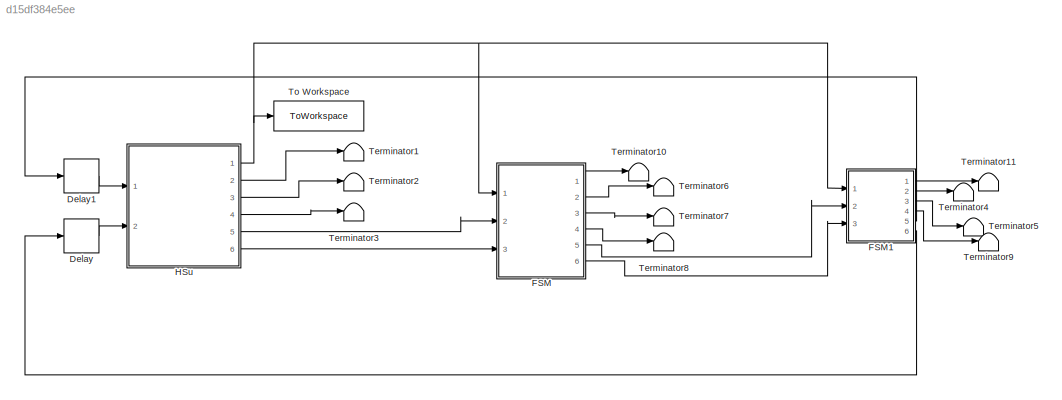
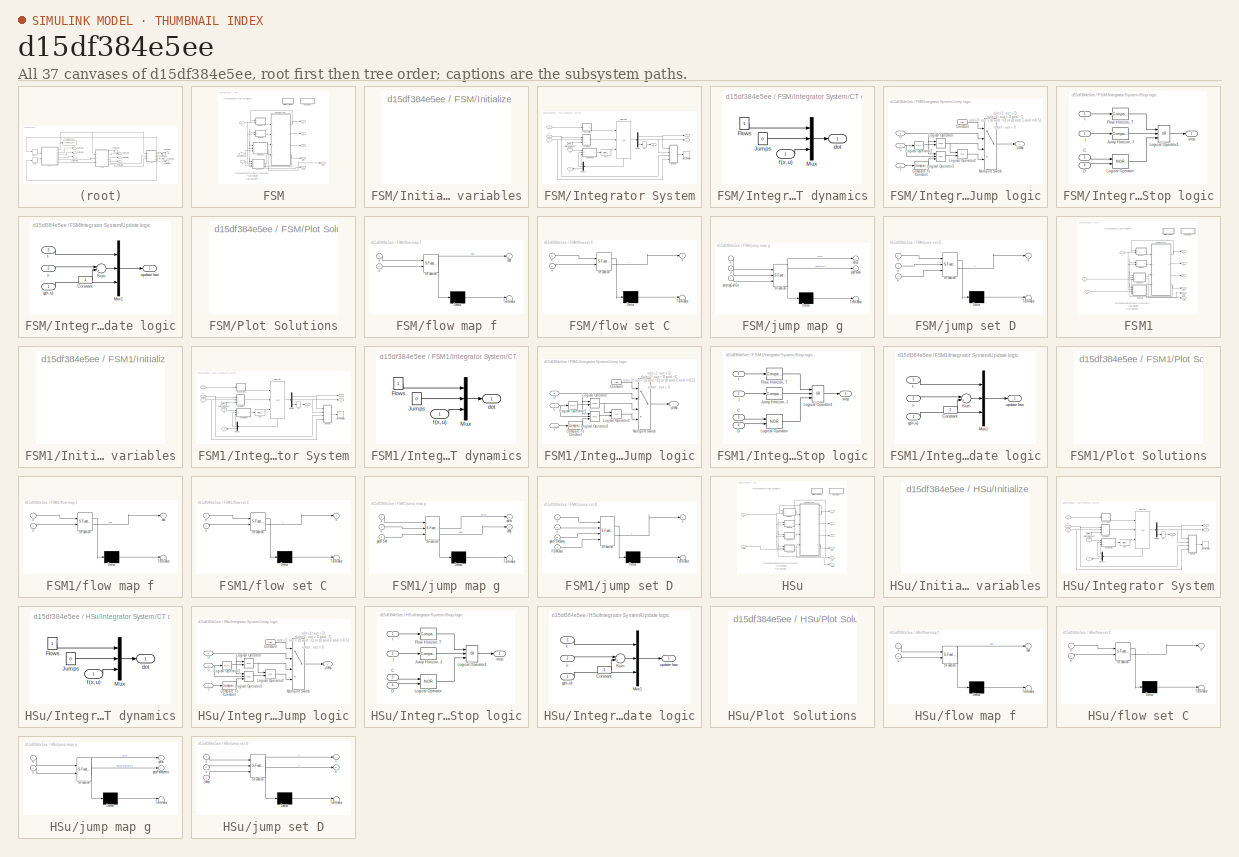
[diagram: thumbnail index - all 37 canvases of the model, root first then tree order]
MODEL slx_d15df384e5ee
KIND model
CONFIG AbsTol = auto
CONFIG EnableMultiTasking = off
CONFIG FixedStep = auto
CONFIG MaxStep = auto
CONFIG MinStep = auto
CONFIG RelTol = 1e-3
CONFIG SampleTimeConstraint = Unconstrained
CONFIG Solver = VariableStepAuto
CONFIG SolverName = VariableStepAuto
CONFIG StartTime = 0.0
CONFIG StopTime = 55
BLOCK [Delay] Delay
  DelayLength = 1
  InitialCondition = 0
  InputPortMap = u0
  Ports = [1, 1]
BLOCK [Delay] Delay1
  DelayLength = 1
  InitialCondition = 0
  InputPortMap = u0
  Ports = [1, 1]
BLOCK [SubSystem] FSM
  CopyFcn = set_param(gcb,'LinkStatus','none'),                                      \nset_param(gcs, 'MaxStep', 'MaxStep', 'RelTol', 'RelTol','Stop time', 'T')
  LoadFcn = set_param(gcb,'LinkStatus','none')
  Ports = [3, 6]
  RequestExecContextInheritance = off
BLOCK [Outport] FSM/Data
  Port = 5
BLOCK [SubSystem] FSM/Initialize variables
  OpenFcn = try                                                            \n     clearvars -except inifile pathfile_in pathfile_pos posfile\n     cd(pathfile_in);                                          \n     eval(inifile);                                            \ncatch                                                          \n     [inifile,pathfile_in] = getInitializationfile;            \n     cd(pathfile...<+179ch>  <repeated x3 — deduplicated; at blocks: Initialize variables>
  Ports = []
  Priority = -10
  RequestExecContextInheritance = off
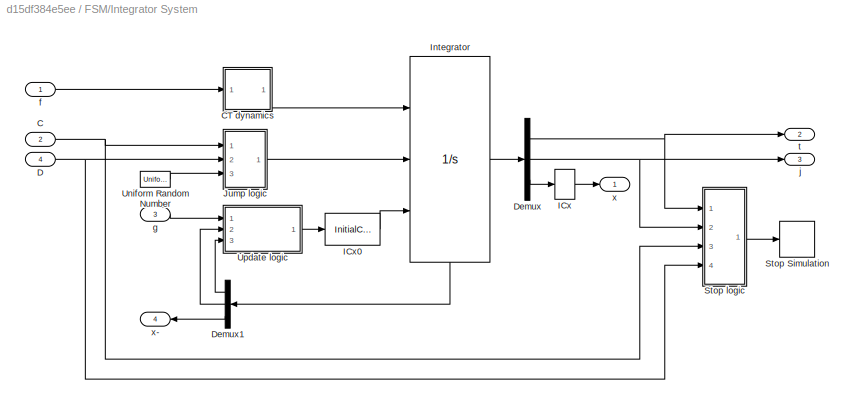
BLOCK [SubSystem] FSM/Integrator System
  Ports = [4, 4]
  Priority = 2
  RequestExecContextInheritance = off
BLOCK [Inport] FSM/Integrator System/C
  NameLocation = top
  Port = 2
BLOCK [SubSystem] FSM/Integrator System/CT dynamics
  Ports = [1, 1]
  RequestExecContextInheritance = off
BLOCK [Constant] FSM/Integrator System/CT dynamics/Flows
BLOCK [Constant] FSM/Integrator System/CT dynamics/Jumps
  Value = 0
BLOCK [Mux] FSM/Integrator System/CT dynamics/Mux
  DisplayOption = bar
  Inputs = [1 1 -1]
  Ports = [3, 1]
BLOCK [Outport] FSM/Integrator System/CT dynamics/dot
BLOCK [Inport] FSM/Integrator System/CT dynamics/f(x,u)
BLOCK [Inport] FSM/Integrator System/D
  Port = 4
BLOCK [Demux] FSM/Integrator System/Demux
  Outputs = [1 1 -1]
  Ports = [1, 3]
BLOCK [Demux] FSM/Integrator System/Demux1
  NameLocation = top
  Outputs = [1 1 -1]
  Ports = [1, 3]
BLOCK [InitialCondition] FSM/Integrator System/ICx
  Value = x0
BLOCK [InitialCondition] FSM/Integrator System/ICx0
  Value = [0; 0; x0(:)]
BLOCK [Integrator] FSM/Integrator System/Integrator
  ExternalReset = level hold
  InitialConditionSource = external
  NameLocation = top
  Ports = [3, 1, 0, 0, 1]
  ShowStatePort = on
  ZeroCross = off
BLOCK [SubSystem] FSM/Integrator System/Jump logic
  Ports = [3, 1]
  RequestExecContextInheritance = off
BLOCK [Inport] FSM/Integrator System/Jump logic/C
BLOCK [Reference] FSM/Integrator System/Jump logic/Compare To Constant  REF=simulink/Logic and Bit
Operations/Compare
To Constant
  Ports = [1, 1]
  SourceBlock = simulink/Logic and Bit\nOperations/Compare\nTo Constant
  SourceProductBaseCode = SL
  SourceType = Compare To Constant
BLOCK [Constant] FSM/Integrator System/Jump logic/Constant
  Value = rule
BLOCK [Inport] FSM/Integrator System/Jump logic/D
  Port = 2
BLOCK [Logic] FSM/Integrator System/Jump logic/Logical Operator
  AllPortsSameDT = off
  OutDataTypeStr = boolean
  Ports = [2, 1]
BLOCK [Logic] FSM/Integrator System/Jump logic/Logical Operator1
  AllPortsSameDT = off
  Inputs = 1
  Operator = NOT
  OutDataTypeStr = boolean
  Ports = [1, 1]
BLOCK [Logic] FSM/Integrator System/Jump logic/Logical Operator2
  AllPortsSameDT = off
  Operator = OR
  OutDataTypeStr = boolean
  Ports = [2, 1]
BLOCK [Logic] FSM/Integrator System/Jump logic/Logical Operator3
  AllPortsSameDT = off
  Inputs = 3
  OutDataTypeStr = boolean
  Ports = [3, 1]
BLOCK [MultiPortSwitch] FSM/Integrator System/Jump logic/Multiport Switch
  InputSameDT = off
  Ports = [4, 1]
  SaturateOnIntegerOverflow = off
BLOCK [Outport] FSM/Integrator System/Jump logic/jump
BLOCK [Inport] FSM/Integrator System/Jump logic/r
  Port = 3
BLOCK [Stop] FSM/Integrator System/Stop Simulation
BLOCK [SubSystem] FSM/Integrator System/Stop logic
  Ports = [4, 1]
  RequestExecContextInheritance = off
BLOCK [Inport] FSM/Integrator System/Stop logic/C
  NameLocation = top
  Port = 3
BLOCK [Inport] FSM/Integrator System/Stop logic/D
  Port = 4
BLOCK [Reference] FSM/Integrator System/Stop logic/Flow Horizon, T  REF=simulink/Logic and Bit
Operations/Compare
To Constant
  NameLocation = top
  Ports = [1, 1]
  SourceBlock = simulink/Logic and Bit\nOperations/Compare\nTo Constant
  SourceProductBaseCode = SL
  SourceType = Compare To Constant
BLOCK [Reference] FSM/Integrator System/Stop logic/Jump Horizon, J  REF=simulink/Logic and Bit
Operations/Compare
To Constant
  NameLocation = top
  Ports = [1, 1]
  SourceBlock = simulink/Logic and Bit\nOperations/Compare\nTo Constant
  SourceProductBaseCode = SL
  SourceType = Compare To Constant
BLOCK [Logic] FSM/Integrator System/Stop logic/Logical Operator
  AllPortsSameDT = off
  NameLocation = top
  Operator = NOR
  OutDataTypeStr = boolean
  Ports = [2, 1]
BLOCK [Logic] FSM/Integrator System/Stop logic/Logical Operator1
  AllPortsSameDT = off
  Inputs = 3
  NameLocation = top
  Operator = OR
  OutDataTypeStr = boolean
  Ports = [3, 1]
BLOCK [Inport] FSM/Integrator System/Stop logic/j
  Port = 2
BLOCK [Outport] FSM/Integrator System/Stop logic/stop
BLOCK [Inport] FSM/Integrator System/Stop logic/t
BLOCK [UniformRandomNumber] FSM/Integrator System/Uniform Random Number
  Minimum = 0
  SampleTime = 0
  Seed = abs(floor(100*rand))
BLOCK [SubSystem] FSM/Integrator System/Update logic
  Ports = [3, 1]
  RequestExecContextInheritance = off
BLOCK [Constant] FSM/Integrator System/Update logic/Constant
BLOCK [Mux] FSM/Integrator System/Update logic/Mux1
  DisplayOption = bar
  Inputs = [1 1 -1]
  Ports = [3, 1]
BLOCK [Sum] FSM/Integrator System/Update logic/Sum
  Inputs = |++
  Ports = [2, 1]
BLOCK [Inport] FSM/Integrator System/Update logic/g(x-,u)
BLOCK [Inport] FSM/Integrator System/Update logic/j-
  Port = 2
BLOCK [Inport] FSM/Integrator System/Update logic/t-
  Port = 3
BLOCK [Outport] FSM/Integrator System/Update logic/update law
BLOCK [Inport] FSM/Integrator System/f
BLOCK [Inport] FSM/Integrator System/g
  Port = 3
BLOCK [Outport] FSM/Integrator System/j
  Port = 3
BLOCK [Outport] FSM/Integrator System/t
  Port = 2
BLOCK [Outport] FSM/Integrator System/x
BLOCK [Outport] FSM/Integrator System/x-
  Port = 4
BLOCK [Outport] FSM/Jump
  Port = 6
BLOCK [SubSystem] FSM/Plot Solutions
  OpenFcn = try                                                 \n     cd(pathfile_pos);                              \n     eval(posfile);                                 \ncatch                                               \n     [posfile,pathfile_pos] = getInitializationfile;\n     cd(pathfile_pos);                              \n     posfile = strrep(posfile,'.m','');             \n     eval(posfile);          ...<+27ch>  <repeated x3 — deduplicated; at blocks: Plot Solutions>
  Ports = []
  RequestExecContextInheritance = off
BLOCK [SubSystem] FSM/flow map f
  ErrorFcn = Stateflow.Translate.translate
  PermitHierarchicalResolution = ExplicitOnly
  Ports = [2, 1]
  RequestExecContextInheritance = off
  SFBlockType = MATLAB Function
  TreatAsAtomicUnit = on
BLOCK [Demux] FSM/flow map f/ Demux 
  Outputs = 1
  Ports = [1, 1]
BLOCK [S-Function] FSM/flow map f/ SFunction 
  EnableBusSupport = on
  FunctionName = sf_sfun
  PortCounts = [2 2]
  Ports = [2, 2]
  SFcnIsStateOwnerBlock = off
  SFunctionDeploymentMode = off
  Tag = Stateflow S-Function 17
BLOCK [Terminator] FSM/flow map f/ Terminator 
BLOCK [Inport] FSM/flow map f/u
  Port = 2
BLOCK [Inport] FSM/flow map f/x
BLOCK [Outport] FSM/flow map f/xdot
BLOCK [SubSystem] FSM/flow set C
  ErrorFcn = Stateflow.Translate.translate
  PermitHierarchicalResolution = ExplicitOnly
  Ports = [2, 1]
  RequestExecContextInheritance = off
  SFBlockType = MATLAB Function
  TreatAsAtomicUnit = on
BLOCK [Demux] FSM/flow set C/ Demux 
  Outputs = 1
  Ports = [1, 1]
BLOCK [S-Function] FSM/flow set C/ SFunction 
  EnableBusSupport = on
  FunctionName = sf_sfun
  PortCounts = [2 2]
  Ports = [2, 2]
  SFcnIsStateOwnerBlock = off
  SFunctionDeploymentMode = off
  Tag = Stateflow S-Function 18
BLOCK [Terminator] FSM/flow set C/ Terminator 
BLOCK [Inport] FSM/flow set C/u
  Port = 2
BLOCK [Outport] FSM/flow set C/v
BLOCK [Inport] FSM/flow set C/x
BLOCK [Outport] FSM/j
  Port = 3
BLOCK [SubSystem] FSM/jump map g
  ErrorFcn = Stateflow.Translate.translate
  PermitHierarchicalResolution = ExplicitOnly
  Ports = [3, 2]
  Priority = 2
  RequestExecContextInheritance = off
  SFBlockType = MATLAB Function
  TreatAsAtomicUnit = on
BLOCK [Demux] FSM/jump map g/ Demux 
  Outputs = 1
  Ports = [1, 1]
BLOCK [S-Function] FSM/jump map g/ SFunction 
  EnableBusSupport = on
  FunctionName = sf_sfun
  Parameters = isReroute,threshold
  PortCounts = [3 3]
  Ports = [3, 3]
  SFcnIsStateOwnerBlock = off
  SFunctionDeploymentMode = off
  Tag = Stateflow S-Function 19
BLOCK [Terminator] FSM/jump map g/ Terminator 
BLOCK [Inport] FSM/jump map g/enteringCarIDs
  Port = 3
BLOCK [Outport] FSM/jump map g/seqParam
  Port = 2
BLOCK [Inport] FSM/jump map g/u
  Port = 2
BLOCK [Inport] FSM/jump map g/x
BLOCK [Outport] FSM/jump map g/xplus
BLOCK [SubSystem] FSM/jump set D
  ErrorFcn = Stateflow.Translate.translate
  PermitHierarchicalResolution = ExplicitOnly
  Ports = [3, 1]
  RequestExecContextInheritance = off
  SFBlockType = MATLAB Function
  TreatAsAtomicUnit = on
BLOCK [Demux] FSM/jump set D/ Demux 
  Outputs = 1
  Ports = [1, 1]
BLOCK [S-Function] FSM/jump set D/ SFunction 
  EnableBusSupport = on
  FunctionName = sf_sfun
  PortCounts = [3 2]
  Ports = [3, 2]
  SFcnIsStateOwnerBlock = off
  SFunctionDeploymentMode = off
  Tag = Stateflow S-Function 20
BLOCK [Terminator] FSM/jump set D/ Terminator 
BLOCK [Inport] FSM/jump set D/k
  Port = 3
BLOCK [Inport] FSM/jump set D/u
  Port = 2
BLOCK [Outport] FSM/jump set D/v
BLOCK [Inport] FSM/jump set D/x
BLOCK [Inport] FSM/k
  Port = 3
BLOCK [Inport] FSM/pendingCars
  Port = 2
BLOCK [Outport] FSM/t
  Port = 2
BLOCK [Inport] FSM/u
BLOCK [Outport] FSM/x
BLOCK [Outport] FSM/x-(int)
  Port = 4
BLOCK [SubSystem] FSM1
  CopyFcn = set_param(gcb,'LinkStatus','none'),                                      \nset_param(gcs, 'MaxStep', 'MaxStep', 'RelTol', 'RelTol','Stop time', 'T')
  LoadFcn = set_param(gcb,'LinkStatus','none')
  Ports = [3, 6]
  RequestExecContextInheritance = off
BLOCK [Outport] FSM1/Data
  Port = 5
BLOCK [SubSystem] FSM1/Initialize variables
  Ports = []
  Priority = -10
  RequestExecContextInheritance = off
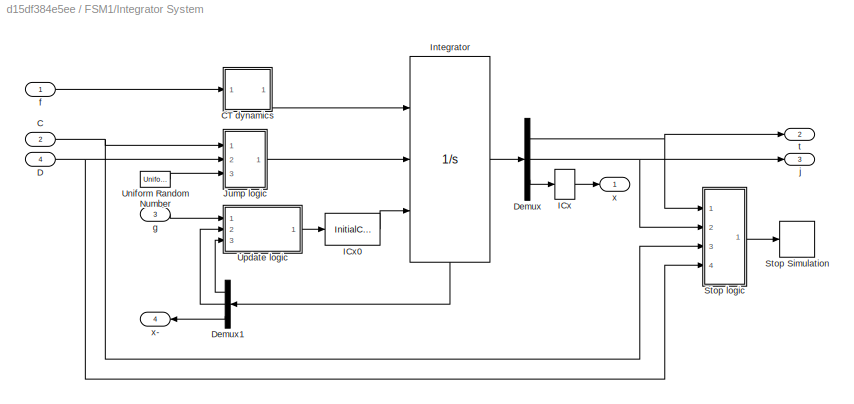
BLOCK [SubSystem] FSM1/Integrator System
  Ports = [4, 4]
  Priority = 2
  RequestExecContextInheritance = off
BLOCK [Inport] FSM1/Integrator System/C
  NameLocation = top
  Port = 2
BLOCK [SubSystem] FSM1/Integrator System/CT dynamics
  Ports = [1, 1]
  RequestExecContextInheritance = off
BLOCK [Constant] FSM1/Integrator System/CT dynamics/Flows
BLOCK [Constant] FSM1/Integrator System/CT dynamics/Jumps
  Value = 0
BLOCK [Mux] FSM1/Integrator System/CT dynamics/Mux
  DisplayOption = bar
  Inputs = [1 1 -1]
  Ports = [3, 1]
BLOCK [Outport] FSM1/Integrator System/CT dynamics/dot
BLOCK [Inport] FSM1/Integrator System/CT dynamics/f(x,u)
BLOCK [Inport] FSM1/Integrator System/D
  Port = 4
BLOCK [Demux] FSM1/Integrator System/Demux
  Outputs = [1 1 -1]
  Ports = [1, 3]
BLOCK [Demux] FSM1/Integrator System/Demux1
  NameLocation = top
  Outputs = [1 1 -1]
  Ports = [1, 3]
BLOCK [InitialCondition] FSM1/Integrator System/ICx
  Value = x0
BLOCK [InitialCondition] FSM1/Integrator System/ICx0
  Value = [0; 0; x0(:)]
BLOCK [Integrator] FSM1/Integrator System/Integrator
  ExternalReset = level hold
  InitialConditionSource = external
  NameLocation = top
  Ports = [3, 1, 0, 0, 1]
  ShowStatePort = on
  ZeroCross = off
BLOCK [SubSystem] FSM1/Integrator System/Jump logic
  Ports = [3, 1]
  RequestExecContextInheritance = off
BLOCK [Inport] FSM1/Integrator System/Jump logic/C
BLOCK [Reference] FSM1/Integrator System/Jump logic/Compare To Constant  REF=simulink/Logic and Bit
Operations/Compare
To Constant
  Ports = [1, 1]
  SourceBlock = simulink/Logic and Bit\nOperations/Compare\nTo Constant
  SourceProductBaseCode = SL
  SourceType = Compare To Constant
BLOCK [Constant] FSM1/Integrator System/Jump logic/Constant
  Value = rule
BLOCK [Inport] FSM1/Integrator System/Jump logic/D
  Port = 2
BLOCK [Logic] FSM1/Integrator System/Jump logic/Logical Operator
  AllPortsSameDT = off
  OutDataTypeStr = boolean
  Ports = [2, 1]
BLOCK [Logic] FSM1/Integrator System/Jump logic/Logical Operator1
  AllPortsSameDT = off
  Inputs = 1
  Operator = NOT
  OutDataTypeStr = boolean
  Ports = [1, 1]
BLOCK [Logic] FSM1/Integrator System/Jump logic/Logical Operator2
  AllPortsSameDT = off
  Operator = OR
  OutDataTypeStr = boolean
  Ports = [2, 1]
BLOCK [Logic] FSM1/Integrator System/Jump logic/Logical Operator3
  AllPortsSameDT = off
  Inputs = 3
  OutDataTypeStr = boolean
  Ports = [3, 1]
BLOCK [MultiPortSwitch] FSM1/Integrator System/Jump logic/Multiport Switch
  InputSameDT = off
  Ports = [4, 1]
  SaturateOnIntegerOverflow = off
BLOCK [Outport] FSM1/Integrator System/Jump logic/jump
BLOCK [Inport] FSM1/Integrator System/Jump logic/r
  Port = 3
BLOCK [Stop] FSM1/Integrator System/Stop Simulation
BLOCK [SubSystem] FSM1/Integrator System/Stop logic
  Ports = [4, 1]
  RequestExecContextInheritance = off
BLOCK [Inport] FSM1/Integrator System/Stop logic/C
  NameLocation = top
  Port = 3
BLOCK [Inport] FSM1/Integrator System/Stop logic/D
  Port = 4
BLOCK [Reference] FSM1/Integrator System/Stop logic/Flow Horizon, T  REF=simulink/Logic and Bit
Operations/Compare
To Constant
  NameLocation = top
  Ports = [1, 1]
  SourceBlock = simulink/Logic and Bit\nOperations/Compare\nTo Constant
  SourceProductBaseCode = SL
  SourceType = Compare To Constant
BLOCK [Reference] FSM1/Integrator System/Stop logic/Jump Horizon, J  REF=simulink/Logic and Bit
Operations/Compare
To Constant
  NameLocation = top
  Ports = [1, 1]
  SourceBlock = simulink/Logic and Bit\nOperations/Compare\nTo Constant
  SourceProductBaseCode = SL
  SourceType = Compare To Constant
BLOCK [Logic] FSM1/Integrator System/Stop logic/Logical Operator
  AllPortsSameDT = off
  NameLocation = top
  Operator = NOR
  OutDataTypeStr = boolean
  Ports = [2, 1]
BLOCK [Logic] FSM1/Integrator System/Stop logic/Logical Operator1
  AllPortsSameDT = off
  Inputs = 3
  NameLocation = top
  Operator = OR
  OutDataTypeStr = boolean
  Ports = [3, 1]
BLOCK [Inport] FSM1/Integrator System/Stop logic/j
  Port = 2
BLOCK [Outport] FSM1/Integrator System/Stop logic/stop
BLOCK [Inport] FSM1/Integrator System/Stop logic/t
BLOCK [UniformRandomNumber] FSM1/Integrator System/Uniform Random Number
  Minimum = 0
  SampleTime = 0
  Seed = abs(floor(100*rand))
BLOCK [SubSystem] FSM1/Integrator System/Update logic
  Ports = [3, 1]
  RequestExecContextInheritance = off
BLOCK [Constant] FSM1/Integrator System/Update logic/Constant
BLOCK [Mux] FSM1/Integrator System/Update logic/Mux1
  DisplayOption = bar
  Inputs = [1 1 -1]
  Ports = [3, 1]
BLOCK [Sum] FSM1/Integrator System/Update logic/Sum
  Inputs = |++
  Ports = [2, 1]
BLOCK [Inport] FSM1/Integrator System/Update logic/g(x-,u)
BLOCK [Inport] FSM1/Integrator System/Update logic/j-
  Port = 2
BLOCK [Inport] FSM1/Integrator System/Update logic/t-
  Port = 3
BLOCK [Outport] FSM1/Integrator System/Update logic/update law
BLOCK [Inport] FSM1/Integrator System/f
BLOCK [Inport] FSM1/Integrator System/g
  Port = 3
BLOCK [Outport] FSM1/Integrator System/j
  Port = 3
BLOCK [Outport] FSM1/Integrator System/t
  Port = 2
BLOCK [Outport] FSM1/Integrator System/x
BLOCK [Outport] FSM1/Integrator System/x-
  Port = 4
BLOCK [Outport] FSM1/Jump
  Port = 6
BLOCK [SubSystem] FSM1/Plot Solutions
  Ports = []
  RequestExecContextInheritance = off
BLOCK [SubSystem] FSM1/flow map f
  ErrorFcn = Stateflow.Translate.translate
  PermitHierarchicalResolution = ExplicitOnly
  Ports = [2, 1]
  RequestExecContextInheritance = off
  SFBlockType = MATLAB Function
  TreatAsAtomicUnit = on
BLOCK [Demux] FSM1/flow map f/ Demux 
  Outputs = 1
  Ports = [1, 1]
BLOCK [S-Function] FSM1/flow map f/ SFunction 
  EnableBusSupport = on
  FunctionName = sf_sfun
  PortCounts = [2 2]
  Ports = [2, 2]
  SFcnIsStateOwnerBlock = off
  SFunctionDeploymentMode = off
  Tag = Stateflow S-Function 1
BLOCK [Terminator] FSM1/flow map f/ Terminator 
BLOCK [Inport] FSM1/flow map f/u
  Port = 2
BLOCK [Inport] FSM1/flow map f/x
BLOCK [Outport] FSM1/flow map f/xdot
BLOCK [SubSystem] FSM1/flow set C
  ErrorFcn = Stateflow.Translate.translate
  PermitHierarchicalResolution = ExplicitOnly
  Ports = [2, 1]
  RequestExecContextInheritance = off
  SFBlockType = MATLAB Function
  TreatAsAtomicUnit = on
BLOCK [Demux] FSM1/flow set C/ Demux 
  Outputs = 1
  Ports = [1, 1]
BLOCK [S-Function] FSM1/flow set C/ SFunction 
  EnableBusSupport = on
  FunctionName = sf_sfun
  PortCounts = [2 2]
  Ports = [2, 2]
  SFcnIsStateOwnerBlock = off
  SFunctionDeploymentMode = off
  Tag = Stateflow S-Function 2
BLOCK [Terminator] FSM1/flow set C/ Terminator 
BLOCK [Inport] FSM1/flow set C/u
  Port = 2
BLOCK [Outport] FSM1/flow set C/v
BLOCK [Inport] FSM1/flow set C/x
BLOCK [Outport] FSM1/j
  Port = 3
BLOCK [SubSystem] FSM1/jump map g
  ErrorFcn = Stateflow.Translate.translate
  PermitHierarchicalResolution = ExplicitOnly
  Ports = [3, 2]
  Priority = 2
  RequestExecContextInheritance = off
  SFBlockType = MATLAB Function
  TreatAsAtomicUnit = on
BLOCK [Demux] FSM1/jump map g/ Demux 
  Outputs = 1
  Ports = [1, 1]
BLOCK [S-Function] FSM1/jump map g/ SFunction 
  EnableBusSupport = on
  FunctionName = sf_sfun
  PortCounts = [3 3]
  Ports = [3, 3]
  SFcnIsStateOwnerBlock = off
  SFunctionDeploymentMode = off
  Tag = Stateflow S-Function 3
BLOCK [Terminator] FSM1/jump map g/ Terminator 
BLOCK [Inport] FSM1/jump map g/gateFSM
  Port = 3
BLOCK [Outport] FSM1/jump map g/seqs
  Port = 2
BLOCK [Inport] FSM1/jump map g/u
  Port = 2
BLOCK [Inport] FSM1/jump map g/x
BLOCK [Outport] FSM1/jump map g/xplus
BLOCK [SubSystem] FSM1/jump set D
  ErrorFcn = Stateflow.Translate.translate
  PermitHierarchicalResolution = ExplicitOnly
  Ports = [4, 1]
  RequestExecContextInheritance = off
  SFBlockType = MATLAB Function
  TreatAsAtomicUnit = on
BLOCK [Demux] FSM1/jump set D/ Demux 
  Outputs = 1
  Ports = [1, 1]
BLOCK [S-Function] FSM1/jump set D/ SFunction 
  EnableBusSupport = on
  FunctionName = sf_sfun
  PortCounts = [4 2]
  Ports = [4, 2]
  SFcnIsStateOwnerBlock = off
  SFunctionDeploymentMode = off
  Tag = Stateflow S-Function 4
BLOCK [Terminator] FSM1/jump set D/ Terminator 
BLOCK [Inport] FSM1/jump set D/FSMGate
  Port = 4
BLOCK [Inport] FSM1/jump set D/gateFSMJump
  Port = 3
BLOCK [Inport] FSM1/jump set D/u
  Port = 2
BLOCK [Outport] FSM1/jump set D/v
BLOCK [Inport] FSM1/jump set D/x
BLOCK [Outport] FSM1/t
  Port = 2
BLOCK [Inport] FSM1/u
BLOCK [Inport] FSM1/u1
  Port = 3
BLOCK [Inport] FSM1/u2
  Port = 2
BLOCK [Outport] FSM1/x
BLOCK [Outport] FSM1/x-(int)
  Port = 4
BLOCK [SubSystem] HSu
  CopyFcn = set_param(gcb,'LinkStatus','none'),                                      \nset_param(gcs, 'MaxStep', 'MaxStep', 'RelTol', 'RelTol','Stop time', 'T')
  LoadFcn = set_param(gcb,'LinkStatus','none')
  Ports = [2, 6]
  RequestExecContextInheritance = off
BLOCK [SubSystem] HSu/Initialize variables
  Ports = []
  Priority = -10
  RequestExecContextInheritance = off
BLOCK [SubSystem] HSu/Integrator System
  Ports = [4, 4]
  Priority = 2
  RequestExecContextInheritance = off
BLOCK [Inport] HSu/Integrator System/C
  NameLocation = top
  Port = 2
BLOCK [SubSystem] HSu/Integrator System/CT dynamics
  Ports = [1, 1]
  RequestExecContextInheritance = off
BLOCK [Constant] HSu/Integrator System/CT dynamics/Flows
BLOCK [Constant] HSu/Integrator System/CT dynamics/Jumps
  Value = 0
BLOCK [Mux] HSu/Integrator System/CT dynamics/Mux
  DisplayOption = bar
  Inputs = [1 1 -1]
  Ports = [3, 1]
BLOCK [Outport] HSu/Integrator System/CT dynamics/dot
BLOCK [Inport] HSu/Integrator System/CT dynamics/f(x,u)
BLOCK [Inport] HSu/Integrator System/D
  Port = 4
BLOCK [Demux] HSu/Integrator System/Demux
  Outputs = [1 1 -1]
  Ports = [1, 3]
BLOCK [Demux] HSu/Integrator System/Demux1
  NameLocation = top
  Outputs = [1 1 -1]
  Ports = [1, 3]
BLOCK [InitialCondition] HSu/Integrator System/ICx
  Value = x0
BLOCK [InitialCondition] HSu/Integrator System/ICx0
  Value = [0; 0; x0(:)]
BLOCK [Integrator] HSu/Integrator System/Integrator
  ExternalReset = level hold
  InitialConditionSource = external
  NameLocation = top
  Ports = [3, 1, 0, 0, 1]
  ShowStatePort = on
  ZeroCross = off
BLOCK [SubSystem] HSu/Integrator System/Jump logic
  Ports = [3, 1]
  RequestExecContextInheritance = off
BLOCK [Inport] HSu/Integrator System/Jump logic/C
BLOCK [Reference] HSu/Integrator System/Jump logic/Compare To Constant  REF=simulink/Logic and Bit
Operations/Compare
To Constant
  Ports = [1, 1]
  SourceBlock = simulink/Logic and Bit\nOperations/Compare\nTo Constant
  SourceProductBaseCode = SL
  SourceType = Compare To Constant
BLOCK [Constant] HSu/Integrator System/Jump logic/Constant
  Value = rule
BLOCK [Inport] HSu/Integrator System/Jump logic/D
  Port = 2
BLOCK [Logic] HSu/Integrator System/Jump logic/Logical Operator
  AllPortsSameDT = off
  OutDataTypeStr = boolean
  Ports = [2, 1]
BLOCK [Logic] HSu/Integrator System/Jump logic/Logical Operator1
  AllPortsSameDT = off
  Inputs = 1
  Operator = NOT
  OutDataTypeStr = boolean
  Ports = [1, 1]
BLOCK [Logic] HSu/Integrator System/Jump logic/Logical Operator2
  AllPortsSameDT = off
  Operator = OR
  OutDataTypeStr = boolean
  Ports = [2, 1]
BLOCK [Logic] HSu/Integrator System/Jump logic/Logical Operator3
  AllPortsSameDT = off
  Inputs = 3
  OutDataTypeStr = boolean
  Ports = [3, 1]
BLOCK [MultiPortSwitch] HSu/Integrator System/Jump logic/Multiport Switch
  InputSameDT = off
  Ports = [4, 1]
  SaturateOnIntegerOverflow = off
BLOCK [Outport] HSu/Integrator System/Jump logic/jump
BLOCK [Inport] HSu/Integrator System/Jump logic/r
  Port = 3
BLOCK [Stop] HSu/Integrator System/Stop Simulation
BLOCK [SubSystem] HSu/Integrator System/Stop logic
  Ports = [4, 1]
  RequestExecContextInheritance = off
BLOCK [Inport] HSu/Integrator System/Stop logic/C
  NameLocation = top
  Port = 3
BLOCK [Inport] HSu/Integrator System/Stop logic/D
  Port = 4
BLOCK [Reference] HSu/Integrator System/Stop logic/Flow Horizon, T  REF=simulink/Logic and Bit
Operations/Compare
To Constant
  NameLocation = top
  Ports = [1, 1]
  SourceBlock = simulink/Logic and Bit\nOperations/Compare\nTo Constant
  SourceProductBaseCode = SL
  SourceType = Compare To Constant
BLOCK [Reference] HSu/Integrator System/Stop logic/Jump Horizon, J  REF=simulink/Logic and Bit
Operations/Compare
To Constant
  NameLocation = top
  Ports = [1, 1]
  SourceBlock = simulink/Logic and Bit\nOperations/Compare\nTo Constant
  SourceProductBaseCode = SL
  SourceType = Compare To Constant
BLOCK [Logic] HSu/Integrator System/Stop logic/Logical Operator
  AllPortsSameDT = off
  NameLocation = top
  Operator = NOR
  OutDataTypeStr = boolean
  Ports = [2, 1]
BLOCK [Logic] HSu/Integrator System/Stop logic/Logical Operator1
  AllPortsSameDT = off
  Inputs = 3
  NameLocation = top
  Operator = OR
  OutDataTypeStr = boolean
  Ports = [3, 1]
BLOCK [Inport] HSu/Integrator System/Stop logic/j
  Port = 2
BLOCK [Outport] HSu/Integrator System/Stop logic/stop
BLOCK [Inport] HSu/Integrator System/Stop logic/t
BLOCK [UniformRandomNumber] HSu/Integrator System/Uniform Random Number
  Minimum = 0
  SampleTime = 0
  Seed = abs(floor(100*rand))
BLOCK [SubSystem] HSu/Integrator System/Update logic
  Ports = [3, 1]
  RequestExecContextInheritance = off
BLOCK [Constant] HSu/Integrator System/Update logic/Constant
BLOCK [Mux] HSu/Integrator System/Update logic/Mux1
  DisplayOption = bar
  Inputs = [1 1 -1]
  Ports = [3, 1]
BLOCK [Sum] HSu/Integrator System/Update logic/Sum
  Inputs = |++
  Ports = [2, 1]
BLOCK [Inport] HSu/Integrator System/Update logic/g(x-,u)
BLOCK [Inport] HSu/Integrator System/Update logic/j-
  Port = 2
BLOCK [Inport] HSu/Integrator System/Update logic/t-
  Port = 3
BLOCK [Outport] HSu/Integrator System/Update logic/update law
BLOCK [Inport] HSu/Integrator System/f
BLOCK [Inport] HSu/Integrator System/g
  Port = 3
BLOCK [Outport] HSu/Integrator System/j
  Port = 3
BLOCK [Outport] HSu/Integrator System/t
  Port = 2
BLOCK [Outport] HSu/Integrator System/x
BLOCK [Outport] HSu/Integrator System/x-
  Port = 4
BLOCK [Inport] HSu/Jump
  Port = 2
BLOCK [SubSystem] HSu/Plot Solutions
  Ports = []
  RequestExecContextInheritance = off
BLOCK [SubSystem] HSu/flow map f
  ErrorFcn = Stateflow.Translate.translate
  PermitHierarchicalResolution = ExplicitOnly
  Ports = [2, 1]
  RequestExecContextInheritance = off
  SFBlockType = MATLAB Function
  TreatAsAtomicUnit = on
BLOCK [Demux] HSu/flow map f/ Demux 
  Outputs = 1
  Ports = [1, 1]
BLOCK [S-Function] HSu/flow map f/ SFunction 
  EnableBusSupport = on
  FunctionName = sf_sfun
  PortCounts = [2 2]
  Ports = [2, 2]
  SFcnIsStateOwnerBlock = off
  SFunctionDeploymentMode = off
  Tag = Stateflow S-Function 21
BLOCK [Terminator] HSu/flow map f/ Terminator 
BLOCK [Inport] HSu/flow map f/u
  Port = 2
BLOCK [Inport] HSu/flow map f/x
BLOCK [Outport] HSu/flow map f/xdot
BLOCK [SubSystem] HSu/flow set C
  ErrorFcn = Stateflow.Translate.translate
  PermitHierarchicalResolution = ExplicitOnly
  Ports = [2, 1]
  RequestExecContextInheritance = off
  SFBlockType = MATLAB Function
  TreatAsAtomicUnit = on
BLOCK [Demux] HSu/flow set C/ Demux 
  Outputs = 1
  Ports = [1, 1]
BLOCK [S-Function] HSu/flow set C/ SFunction 
  EnableBusSupport = on
  FunctionName = sf_sfun
  PortCounts = [2 2]
  Ports = [2, 2]
  SFcnIsStateOwnerBlock = off
  SFunctionDeploymentMode = off
  Tag = Stateflow S-Function 22
BLOCK [Terminator] HSu/flow set C/ Terminator 
BLOCK [Inport] HSu/flow set C/u
  Port = 2
BLOCK [Outport] HSu/flow set C/v
BLOCK [Inport] HSu/flow set C/x
BLOCK [Outport] HSu/gate
  Port = 5
BLOCK [Outport] HSu/j
  Port = 3
BLOCK [Outport] HSu/jump
  Port = 6
BLOCK [SubSystem] HSu/jump map g
  ErrorFcn = Stateflow.Translate.translate
  PermitHierarchicalResolution = ExplicitOnly
  Ports = [2, 2]
  Priority = 2
  RequestExecContextInheritance = off
  SFBlockType = MATLAB Function
  TreatAsAtomicUnit = on
BLOCK [Demux] HSu/jump map g/ Demux 
  Outputs = 1
  Ports = [1, 1]
BLOCK [S-Function] HSu/jump map g/ SFunction 
  EnableBusSupport = on
  FunctionName = sf_sfun
  PortCounts = [2 3]
  Ports = [2, 3]
  SFcnIsStateOwnerBlock = off
  SFunctionDeploymentMode = off
  Tag = Stateflow S-Function 23
BLOCK [Terminator] HSu/jump map g/ Terminator 
BLOCK [Outport] HSu/jump map g/gateParameters
  Port = 2
BLOCK [Inport] HSu/jump map g/u
  Port = 2
BLOCK [Inport] HSu/jump map g/x
BLOCK [Outport] HSu/jump map g/xplus
BLOCK [SubSystem] HSu/jump set D
  ErrorFcn = Stateflow.Translate.translate
  PermitHierarchicalResolution = ExplicitOnly
  Ports = [3, 2]
  RequestExecContextInheritance = off
  SFBlockType = MATLAB Function
  TreatAsAtomicUnit = on
BLOCK [Demux] HSu/jump set D/ Demux 
  Outputs = 1
  Ports = [1, 1]
BLOCK [S-Function] HSu/jump set D/ SFunction 
  EnableBusSupport = on
  FunctionName = sf_sfun
  PortCounts = [3 3]
  Ports = [3, 3]
  SFcnIsStateOwnerBlock = off
  SFunctionDeploymentMode = off
  Tag = Stateflow S-Function 24
BLOCK [Terminator] HSu/jump set D/ Terminator 
BLOCK [Inport] HSu/jump set D/jump
  Port = 3
BLOCK [Outport] HSu/jump set D/k
  Port = 2
BLOCK [Inport] HSu/jump set D/u
  Port = 2
BLOCK [Outport] HSu/jump set D/v
BLOCK [Inport] HSu/jump set D/x
BLOCK [Outport] HSu/t
  Port = 2
BLOCK [Inport] HSu/u
BLOCK [Outport] HSu/x
BLOCK [Outport] HSu/x-(int)
  Port = 4
BLOCK [Terminator] Terminator1
BLOCK [Terminator] Terminator10
BLOCK [Terminator] Terminator11
BLOCK [Terminator] Terminator2
BLOCK [Terminator] Terminator3
BLOCK [Terminator] Terminator4
BLOCK [Terminator] Terminator5
BLOCK [Terminator] Terminator6
BLOCK [Terminator] Terminator7
BLOCK [Terminator] Terminator8
BLOCK [Terminator] Terminator9
BLOCK [ToWorkspace] To Workspace
  FixptAsFi = on
  MaxDataPoints = inf
  Ports = [1]
  SampleTime = -1
  SaveFormat = Timeseries
  VariableName = simout
ANNOTATION FSM: J: horizon for jump time
ANNOTATION FSM: T: horizon for flow time
ANNOTATION FSM: This model simulates a hybrid system with input
ANNOTATION FSM: To run simulation, the following variables should be defined:
ANNOTATION FSM/Integrator System/Jump logic: rule=1: out = D rlule=2: out = D and ~C rule=3: out = (D and ~C) or (D and C and r>0.5) other : out = 0
ANNOTATION FSM1: J: horizon for jump time
ANNOTATION FSM1: T: horizon for flow time
ANNOTATION FSM1: This model simulates a hybrid system with input
ANNOTATION FSM1: To run simulation, the following variables should be defined:
ANNOTATION FSM1/Integrator System/Jump logic: rule=1: out = D rlule=2: out = D and ~C rule=3: out = (D and ~C) or (D and C and r>0.5) other : out = 0
ANNOTATION HSu: J: horizon for jump time
ANNOTATION HSu: T: horizon for flow time
ANNOTATION HSu: This model simulates a hybrid system with input
ANNOTATION HSu: To run simulation, the following variables should be defined:
ANNOTATION HSu/Integrator System/Jump logic: rule=1: out = D rlule=2: out = D and ~C rule=3: out = (D and ~C) or (D and C and r>0.5) other : out = 0
LINE Delay1:1 -> HSu:1
LINE Delay:1 -> HSu:2
NET FSM/Integrator System/C:1 -> FSM/Integrator System/Jump logic:1, FSM/Integrator System/Stop logic:3
LINE FSM/Integrator System/CT dynamics/Flows:1 -> FSM/Integrator System/CT dynamics/Mux:1
LINE FSM/Integrator System/CT dynamics/Jumps:1 -> FSM/Integrator System/CT dynamics/Mux:2
LINE FSM/Integrator System/CT dynamics/Mux:1 -> FSM/Integrator System/CT dynamics/dot:1
LINE FSM/Integrator System/CT dynamics/f(x,u):1 -> FSM/Integrator System/CT dynamics/Mux:3
LINE FSM/Integrator System/CT dynamics:1 -> FSM/Integrator System/Integrator:1
NET FSM/Integrator System/D:1 -> FSM/Integrator System/Jump logic:2, FSM/Integrator System/Stop logic:4
LINE FSM/Integrator System/Demux1:1 -> FSM/Integrator System/Update logic:3
LINE FSM/Integrator System/Demux1:2 -> FSM/Integrator System/Update logic:2
LINE FSM/Integrator System/Demux1:3 -> FSM/Integrator System/x-:1
NET FSM/Integrator System/Demux:1 -> FSM/Integrator System/Stop logic:1, FSM/Integrator System/t:1
NET FSM/Integrator System/Demux:2 -> FSM/Integrator System/Stop logic:2, FSM/Integrator System/j:1
LINE FSM/Integrator System/Demux:3 -> FSM/Integrator System/ICx:1
LINE FSM/Integrator System/ICx0:1 -> FSM/Integrator System/Integrator:3
LINE FSM/Integrator System/ICx:1 -> FSM/Integrator System/x:1
LINE FSM/Integrator System/Integrator:1 -> FSM/Integrator System/Demux:1
LINE FSM/Integrator System/Integrator:state -> FSM/Integrator System/Demux1:1
NET FSM/Integrator System/Jump logic/C:1 -> FSM/Integrator System/Jump logic/Logical Operator1:1, FSM/Integrator System/Jump logic/Logical Operator3:2
LINE FSM/Integrator System/Jump logic/Compare To Constant:1 -> FSM/Integrator System/Jump logic/Logical Operator3:3
LINE FSM/Integrator System/Jump logic/Constant:1 -> FSM/Integrator System/Jump logic/Multiport Switch:1
NET FSM/Integrator System/Jump logic/D:1 -> FSM/Integrator System/Jump logic/Logical Operator3:1, FSM/Integrator System/Jump logic/Logical Operator:1, FSM/Integrator System/Jump logic/Multiport Switch:2
LINE FSM/Integrator System/Jump logic/Logical Operator1:1 -> FSM/Integrator System/Jump logic/Logical Operator:2
LINE FSM/Integrator System/Jump logic/Logical Operator2:1 -> FSM/Integrator System/Jump logic/Multiport Switch:4
LINE FSM/Integrator System/Jump logic/Logical Operator3:1 -> FSM/Integrator System/Jump logic/Logical Operator2:2
NET FSM/Integrator System/Jump logic/Logical Operator:1 -> FSM/Integrator System/Jump logic/Logical Operator2:1, FSM/Integrator System/Jump logic/Multiport Switch:3
LINE FSM/Integrator System/Jump logic/Multiport Switch:1 -> FSM/Integrator System/Jump logic/jump:1
LINE FSM/Integrator System/Jump logic/r:1 -> FSM/Integrator System/Jump logic/Compare To Constant:1
LINE FSM/Integrator System/Jump logic:1 -> FSM/Integrator System/Integrator:2
LINE FSM/Integrator System/Stop logic/C:1 -> FSM/Integrator System/Stop logic/Logical Operator:1
LINE FSM/Integrator System/Stop logic/D:1 -> FSM/Integrator System/Stop logic/Logical Operator:2
LINE FSM/Integrator System/Stop logic/Flow Horizon, T:1 -> FSM/Integrator System/Stop logic/Logical Operator1:1
LINE FSM/Integrator System/Stop logic/Jump Horizon, J:1 -> FSM/Integrator System/Stop logic/Logical Operator1:2
LINE FSM/Integrator System/Stop logic/Logical Operator1:1 -> FSM/Integrator System/Stop logic/stop:1
LINE FSM/Integrator System/Stop logic/Logical Operator:1 -> FSM/Integrator System/Stop logic/Logical Operator1:3
LINE FSM/Integrator System/Stop logic/j:1 -> FSM/Integrator System/Stop logic/Jump Horizon, J:1
LINE FSM/Integrator System/Stop logic/t:1 -> FSM/Integrator System/Stop logic/Flow Horizon, T:1
LINE FSM/Integrator System/Stop logic:1 -> FSM/Integrator System/Stop Simulation:1
LINE FSM/Integrator System/Uniform Random Number:1 -> FSM/Integrator System/Jump logic:3
LINE FSM/Integrator System/Update logic/Constant:1 -> FSM/Integrator System/Update logic/Sum:2
LINE FSM/Integrator System/Update logic/Mux1:1 -> FSM/Integrator System/Update logic/update law:1
LINE FSM/Integrator System/Update logic/Sum:1 -> FSM/Integrator System/Update logic/Mux1:2
LINE FSM/Integrator System/Update logic/g(x-,u):1 -> FSM/Integrator System/Update logic/Mux1:3
LINE FSM/Integrator System/Update logic/j-:1 -> FSM/Integrator System/Update logic/Sum:1
LINE FSM/Integrator System/Update logic/t-:1 -> FSM/Integrator System/Update logic/Mux1:1
LINE FSM/Integrator System/Update logic:1 -> FSM/Integrator System/ICx0:1
LINE FSM/Integrator System/f:1 -> FSM/Integrator System/CT dynamics:1
LINE FSM/Integrator System/g:1 -> FSM/Integrator System/Update logic:1
NET FSM/Integrator System:1 -> FSM/flow map f:1, FSM/x:1
LINE FSM/Integrator System:2 -> FSM/t:1
LINE FSM/Integrator System:3 -> FSM/j:1
NET FSM/Integrator System:4 -> FSM/flow set C:1, FSM/jump map g:1, FSM/jump set D:1, FSM/x-(int):1
LINE FSM/flow map f:1 -> FSM/Integrator System:1
LINE FSM/flow set C:1 -> FSM/Integrator System:2
LINE FSM/jump map g:1 -> FSM/Integrator System:3
LINE FSM/jump map g:2 -> FSM/Data:1
NET FSM/jump set D:1 -> FSM/Integrator System:4, FSM/Jump:1
LINE FSM/k:1 -> FSM/jump set D:3
LINE FSM/pendingCars:1 -> FSM/jump map g:3
NET FSM/u:1 -> FSM/flow map f:2, FSM/flow set C:2, FSM/jump map g:2, FSM/jump set D:2
NET FSM1/Integrator System/C:1 -> FSM1/Integrator System/Jump logic:1, FSM1/Integrator System/Stop logic:3
LINE FSM1/Integrator System/CT dynamics/Flows:1 -> FSM1/Integrator System/CT dynamics/Mux:1
LINE FSM1/Integrator System/CT dynamics/Jumps:1 -> FSM1/Integrator System/CT dynamics/Mux:2
LINE FSM1/Integrator System/CT dynamics/Mux:1 -> FSM1/Integrator System/CT dynamics/dot:1
LINE FSM1/Integrator System/CT dynamics/f(x,u):1 -> FSM1/Integrator System/CT dynamics/Mux:3
LINE FSM1/Integrator System/CT dynamics:1 -> FSM1/Integrator System/Integrator:1
NET FSM1/Integrator System/D:1 -> FSM1/Integrator System/Jump logic:2, FSM1/Integrator System/Stop logic:4
LINE FSM1/Integrator System/Demux1:1 -> FSM1/Integrator System/Update logic:3
LINE FSM1/Integrator System/Demux1:2 -> FSM1/Integrator System/Update logic:2
LINE FSM1/Integrator System/Demux1:3 -> FSM1/Integrator System/x-:1
NET FSM1/Integrator System/Demux:1 -> FSM1/Integrator System/Stop logic:1, FSM1/Integrator System/t:1
NET FSM1/Integrator System/Demux:2 -> FSM1/Integrator System/Stop logic:2, FSM1/Integrator System/j:1
LINE FSM1/Integrator System/Demux:3 -> FSM1/Integrator System/ICx:1
LINE FSM1/Integrator System/ICx0:1 -> FSM1/Integrator System/Integrator:3
LINE FSM1/Integrator System/ICx:1 -> FSM1/Integrator System/x:1
LINE FSM1/Integrator System/Integrator:1 -> FSM1/Integrator System/Demux:1
LINE FSM1/Integrator System/Integrator:state -> FSM1/Integrator System/Demux1:1
NET FSM1/Integrator System/Jump logic/C:1 -> FSM1/Integrator System/Jump logic/Logical Operator1:1, FSM1/Integrator System/Jump logic/Logical Operator3:2
LINE FSM1/Integrator System/Jump logic/Compare To Constant:1 -> FSM1/Integrator System/Jump logic/Logical Operator3:3
LINE FSM1/Integrator System/Jump logic/Constant:1 -> FSM1/Integrator System/Jump logic/Multiport Switch:1
NET FSM1/Integrator System/Jump logic/D:1 -> FSM1/Integrator System/Jump logic/Logical Operator3:1, FSM1/Integrator System/Jump logic/Logical Operator:1, FSM1/Integrator System/Jump logic/Multiport Switch:2
LINE FSM1/Integrator System/Jump logic/Logical Operator1:1 -> FSM1/Integrator System/Jump logic/Logical Operator:2
LINE FSM1/Integrator System/Jump logic/Logical Operator2:1 -> FSM1/Integrator System/Jump logic/Multiport Switch:4
LINE FSM1/Integrator System/Jump logic/Logical Operator3:1 -> FSM1/Integrator System/Jump logic/Logical Operator2:2
NET FSM1/Integrator System/Jump logic/Logical Operator:1 -> FSM1/Integrator System/Jump logic/Logical Operator2:1, FSM1/Integrator System/Jump logic/Multiport Switch:3
LINE FSM1/Integrator System/Jump logic/Multiport Switch:1 -> FSM1/Integrator System/Jump logic/jump:1
LINE FSM1/Integrator System/Jump logic/r:1 -> FSM1/Integrator System/Jump logic/Compare To Constant:1
LINE FSM1/Integrator System/Jump logic:1 -> FSM1/Integrator System/Integrator:2
LINE FSM1/Integrator System/Stop logic/C:1 -> FSM1/Integrator System/Stop logic/Logical Operator:1
LINE FSM1/Integrator System/Stop logic/D:1 -> FSM1/Integrator System/Stop logic/Logical Operator:2
LINE FSM1/Integrator System/Stop logic/Flow Horizon, T:1 -> FSM1/Integrator System/Stop logic/Logical Operator1:1
LINE FSM1/Integrator System/Stop logic/Jump Horizon, J:1 -> FSM1/Integrator System/Stop logic/Logical Operator1:2
LINE FSM1/Integrator System/Stop logic/Logical Operator1:1 -> FSM1/Integrator System/Stop logic/stop:1
LINE FSM1/Integrator System/Stop logic/Logical Operator:1 -> FSM1/Integrator System/Stop logic/Logical Operator1:3
LINE FSM1/Integrator System/Stop logic/j:1 -> FSM1/Integrator System/Stop logic/Jump Horizon, J:1
LINE FSM1/Integrator System/Stop logic/t:1 -> FSM1/Integrator System/Stop logic/Flow Horizon, T:1
LINE FSM1/Integrator System/Stop logic:1 -> FSM1/Integrator System/Stop Simulation:1
LINE FSM1/Integrator System/Uniform Random Number:1 -> FSM1/Integrator System/Jump logic:3
LINE FSM1/Integrator System/Update logic/Constant:1 -> FSM1/Integrator System/Update logic/Sum:2
LINE FSM1/Integrator System/Update logic/Mux1:1 -> FSM1/Integrator System/Update logic/update law:1
LINE FSM1/Integrator System/Update logic/Sum:1 -> FSM1/Integrator System/Update logic/Mux1:2
LINE FSM1/Integrator System/Update logic/g(x-,u):1 -> FSM1/Integrator System/Update logic/Mux1:3
LINE FSM1/Integrator System/Update logic/j-:1 -> FSM1/Integrator System/Update logic/Sum:1
LINE FSM1/Integrator System/Update logic/t-:1 -> FSM1/Integrator System/Update logic/Mux1:1
LINE FSM1/Integrator System/Update logic:1 -> FSM1/Integrator System/ICx0:1
LINE FSM1/Integrator System/f:1 -> FSM1/Integrator System/CT dynamics:1
LINE FSM1/Integrator System/g:1 -> FSM1/Integrator System/Update logic:1
NET FSM1/Integrator System:1 -> FSM1/flow map f:1, FSM1/x:1
LINE FSM1/Integrator System:2 -> FSM1/t:1
LINE FSM1/Integrator System:3 -> FSM1/j:1
NET FSM1/Integrator System:4 -> FSM1/flow set C:1, FSM1/jump map g:1, FSM1/jump set D:1, FSM1/x-(int):1
LINE FSM1/flow map f:1 -> FSM1/Integrator System:1
LINE FSM1/flow set C:1 -> FSM1/Integrator System:2
LINE FSM1/jump map g:1 -> FSM1/Integrator System:3
LINE FSM1/jump map g:2 -> FSM1/Data:1
NET FSM1/jump set D:1 -> FSM1/Integrator System:4, FSM1/Jump:1
LINE FSM1/u1:1 -> FSM1/jump set D:3
NET FSM1/u2:1 -> FSM1/jump map g:3, FSM1/jump set D:4
NET FSM1/u:1 -> FSM1/flow map f:2, FSM1/flow set C:2, FSM1/jump map g:2, FSM1/jump set D:2
LINE FSM1:1 -> Terminator11:1
LINE FSM1:2 -> Terminator4:1
LINE FSM1:3 -> Terminator5:1
LINE FSM1:4 -> Terminator9:1
LINE FSM1:5 -> Delay1:1
LINE FSM1:6 -> Delay:1
LINE FSM:1 -> Terminator10:1
LINE FSM:2 -> Terminator6:1
LINE FSM:3 -> Terminator7:1
LINE FSM:4 -> Terminator8:1
LINE FSM:5 -> FSM1:2
LINE FSM:6 -> FSM1:3
NET HSu/Integrator System/C:1 -> HSu/Integrator System/Jump logic:1, HSu/Integrator System/Stop logic:3
LINE HSu/Integrator System/CT dynamics/Flows:1 -> HSu/Integrator System/CT dynamics/Mux:1
LINE HSu/Integrator System/CT dynamics/Jumps:1 -> HSu/Integrator System/CT dynamics/Mux:2
LINE HSu/Integrator System/CT dynamics/Mux:1 -> HSu/Integrator System/CT dynamics/dot:1
LINE HSu/Integrator System/CT dynamics/f(x,u):1 -> HSu/Integrator System/CT dynamics/Mux:3
LINE HSu/Integrator System/CT dynamics:1 -> HSu/Integrator System/Integrator:1
NET HSu/Integrator System/D:1 -> HSu/Integrator System/Jump logic:2, HSu/Integrator System/Stop logic:4
LINE HSu/Integrator System/Demux1:1 -> HSu/Integrator System/Update logic:3
LINE HSu/Integrator System/Demux1:2 -> HSu/Integrator System/Update logic:2
LINE HSu/Integrator System/Demux1:3 -> HSu/Integrator System/x-:1
NET HSu/Integrator System/Demux:1 -> HSu/Integrator System/Stop logic:1, HSu/Integrator System/t:1
NET HSu/Integrator System/Demux:2 -> HSu/Integrator System/Stop logic:2, HSu/Integrator System/j:1
LINE HSu/Integrator System/Demux:3 -> HSu/Integrator System/ICx:1
LINE HSu/Integrator System/ICx0:1 -> HSu/Integrator System/Integrator:3
LINE HSu/Integrator System/ICx:1 -> HSu/Integrator System/x:1
LINE HSu/Integrator System/Integrator:1 -> HSu/Integrator System/Demux:1
LINE HSu/Integrator System/Integrator:state -> HSu/Integrator System/Demux1:1
NET HSu/Integrator System/Jump logic/C:1 -> HSu/Integrator System/Jump logic/Logical Operator1:1, HSu/Integrator System/Jump logic/Logical Operator3:2
LINE HSu/Integrator System/Jump logic/Compare To Constant:1 -> HSu/Integrator System/Jump logic/Logical Operator3:3
LINE HSu/Integrator System/Jump logic/Constant:1 -> HSu/Integrator System/Jump logic/Multiport Switch:1
NET HSu/Integrator System/Jump logic/D:1 -> HSu/Integrator System/Jump logic/Logical Operator3:1, HSu/Integrator System/Jump logic/Logical Operator:1, HSu/Integrator System/Jump logic/Multiport Switch:2
LINE HSu/Integrator System/Jump logic/Logical Operator1:1 -> HSu/Integrator System/Jump logic/Logical Operator:2
LINE HSu/Integrator System/Jump logic/Logical Operator2:1 -> HSu/Integrator System/Jump logic/Multiport Switch:4
LINE HSu/Integrator System/Jump logic/Logical Operator3:1 -> HSu/Integrator System/Jump logic/Logical Operator2:2
NET HSu/Integrator System/Jump logic/Logical Operator:1 -> HSu/Integrator System/Jump logic/Logical Operator2:1, HSu/Integrator System/Jump logic/Multiport Switch:3
LINE HSu/Integrator System/Jump logic/Multiport Switch:1 -> HSu/Integrator System/Jump logic/jump:1
LINE HSu/Integrator System/Jump logic/r:1 -> HSu/Integrator System/Jump logic/Compare To Constant:1
LINE HSu/Integrator System/Jump logic:1 -> HSu/Integrator System/Integrator:2
LINE HSu/Integrator System/Stop logic/C:1 -> HSu/Integrator System/Stop logic/Logical Operator:1
LINE HSu/Integrator System/Stop logic/D:1 -> HSu/Integrator System/Stop logic/Logical Operator:2
LINE HSu/Integrator System/Stop logic/Flow Horizon, T:1 -> HSu/Integrator System/Stop logic/Logical Operator1:1
LINE HSu/Integrator System/Stop logic/Jump Horizon, J:1 -> HSu/Integrator System/Stop logic/Logical Operator1:2
LINE HSu/Integrator System/Stop logic/Logical Operator1:1 -> HSu/Integrator System/Stop logic/stop:1
LINE HSu/Integrator System/Stop logic/Logical Operator:1 -> HSu/Integrator System/Stop logic/Logical Operator1:3
LINE HSu/Integrator System/Stop logic/j:1 -> HSu/Integrator System/Stop logic/Jump Horizon, J:1
LINE HSu/Integrator System/Stop logic/t:1 -> HSu/Integrator System/Stop logic/Flow Horizon, T:1
LINE HSu/Integrator System/Stop logic:1 -> HSu/Integrator System/Stop Simulation:1
LINE HSu/Integrator System/Uniform Random Number:1 -> HSu/Integrator System/Jump logic:3
LINE HSu/Integrator System/Update logic/Constant:1 -> HSu/Integrator System/Update logic/Sum:2
LINE HSu/Integrator System/Update logic/Mux1:1 -> HSu/Integrator System/Update logic/update law:1
LINE HSu/Integrator System/Update logic/Sum:1 -> HSu/Integrator System/Update logic/Mux1:2
LINE HSu/Integrator System/Update logic/g(x-,u):1 -> HSu/Integrator System/Update logic/Mux1:3
LINE HSu/Integrator System/Update logic/j-:1 -> HSu/Integrator System/Update logic/Sum:1
LINE HSu/Integrator System/Update logic/t-:1 -> HSu/Integrator System/Update logic/Mux1:1
LINE HSu/Integrator System/Update logic:1 -> HSu/Integrator System/ICx0:1
LINE HSu/Integrator System/f:1 -> HSu/Integrator System/CT dynamics:1
LINE HSu/Integrator System/g:1 -> HSu/Integrator System/Update logic:1
NET HSu/Integrator System:1 -> HSu/flow map f:1, HSu/x:1
LINE HSu/Integrator System:2 -> HSu/t:1
LINE HSu/Integrator System:3 -> HSu/j:1
NET HSu/Integrator System:4 -> HSu/flow set C:1, HSu/jump map g:1, HSu/jump set D:1, HSu/x-(int):1
LINE HSu/Jump:1 -> HSu/jump set D:3
LINE HSu/flow map f:1 -> HSu/Integrator System:1
LINE HSu/flow set C:1 -> HSu/Integrator System:2
LINE HSu/jump map g:1 -> HSu/Integrator System:3
LINE HSu/jump map g:2 -> HSu/gate:1
LINE HSu/jump set D:1 -> HSu/Integrator System:4
LINE HSu/jump set D:2 -> HSu/jump:1
NET HSu/u:1 -> HSu/flow map f:2, HSu/flow set C:2, HSu/jump map g:2, HSu/jump set D:2
NET HSu:1 -> FSM1:1, FSM:1, To Workspace:1
LINE HSu:2 -> Terminator1:1
LINE HSu:3 -> Terminator2:1
LINE HSu:4 -> Terminator3:1
LINE HSu:5 -> FSM:2
LINE HSu:6 -> FSM:3
note: NET lines group one-source signal fan-out (src -> all destinations, sorted); 1:1 wires keep LINE
CHART HSu/flow set C states=1 transitions=1
  STATE_LABEL 'eML_blk_kernel()'
  STATE_LABEL 'SCRIPT:\nfunction v  = C(x, u) \n%--------------------------------------------------------------------------\n% Matlab M-file Project: HyEQ Toolbox @  Hybrid Systems Laboratory (HSL), \n% https://hybrid.soe.ucsc.edu/software\n% http://hybridsimulator.wordpress.com/\n%--------------------------------------------------------------------------\n% Project: Simulation of a hybrid system\n% Description: Flow se...<+564ch>'
CHART HSu/jump map g states=1 transitions=1
  STATE_LABEL 'eML_blk_kernel()'
  STATE_LABEL "SCRIPT:\nfunction [xplus,gateParameters]= g(x, u)\n\ncars = x(46:end);\ncarMatrix = reshape(cars,length(cars)/18,18);\n\n% admittedCarMatrix = reshape(u,3,length(u)/3)';\nadmittedCarMatrix = u;\n% newCarMatrix = carMatrix;\n\n% for i =1:length(cars)/18\n%     if isequal(carMatrix(i,[9,10]),newCarMatrix(i,[9,10]))\n%         admittedCars=[admittedCars,i];\n%     end\n% end\nfor i = 1:length(cars)/18\n    if admitt...<+517ch>"
CHART HSu/jump set D states=1 transitions=1
  STATE_LABEL 'eML_blk_kernel()'
  STATE_LABEL "SCRIPT:\nfunction [v,k] = D(x, u,jump) \n\ncars = x(46:end);\n% \ncarMatrix = reshape(cars,length(cars)/18,18);\n% newCarMatrix = reshape(u,18,length(u)/18)';\nv=jump==1;\n% for i =1:length(cars)/18\n%     if ~isequal(carMatrix(i,[9,10]),newCarMatrix(i,[9,10])) && carMatrix(i,14)==0\n%         v=1;\n%         break;\n%     end\n% end\n%         \n\n% %To Do\n\n\n  for i = 1:length(cars)/18\n      if v || carJumpD(car...<+343ch>"
CHART FSM1/flow map f states=1 transitions=1
  STATE_LABEL 'eML_blk_kernel()'
  STATE_LABEL 'SCRIPT:\nfunction xdot = f(x, u)\n%--------------------------------------------------------------------------\n% Matlab M-file Project: HyEQ Toolbox @  Hybrid Systems Laboratory (HSL), \n% https://hybrid.soe.ucsc.edu/software\n% http://hybridsimulator.wordpress.com/\n%--------------------------------------------------------------------------\n% Project: Simulation of a hybrid system Finite state machine ...<+525ch>'
CHART FSM1/flow set C states=1 transitions=1
  STATE_LABEL 'eML_blk_kernel()'
  STATE_LABEL 'SCRIPT:\nfunction v  = C(x, u) \n%--------------------------------------------------------------------------\n% Matlab M-file Project: HyEQ Toolbox @  Hybrid Systems Laboratory (HSL), \n% https://hybrid.soe.ucsc.edu/software\n% http://hybridsimulator.wordpress.com/\n%--------------------------------------------------------------------------\n% Project: Simulation of a hybrid system Finite state machine (...<+563ch>'
CHART FSM1/jump map g states=1 transitions=1
  STATE_LABEL 'eML_blk_kernel()'
  STATE_LABEL 'SCRIPT:\nfunction [xplus,seqs] = g(x, u,gateFSM)\n\ncars = u(46:end);\ncarMatrix = reshape(cars,length(cars)/18,18);\n\ncarsAdmitted = gateFSM(1:length(cars)/18);\n% newRouteMatrix = gateFSM(length(cars)/18 +1:end);\n\n% newRouteMatrix = reshape(newRouteMatrix,length(cars)/18,2);\nIDsRoute=zeros(length(cars)/18,1);\n\n[carMatrixAdmit,IDsAdmit] = handleAdmit(carsAdmitted,carMatrix);\n\n%  if isReroute==1\n%      ...<+597ch>'
CHART FSM1/jump set D states=1 transitions=1
  STATE_LABEL 'eML_blk_kernel()'
  STATE_LABEL 'SCRIPT:\nfunction v  = D(x, u,gateFSMJump,FSMGate) \n\n\nv=1==0;\n[height,width]=size(u);\nif (gateFSMJump==1)&&~isequal(zeros(height,width),FSMGate)\n    v=1==1;\nend'
CHART FSM/flow map f states=1 transitions=1
  STATE_LABEL 'eML_blk_kernel()'
  STATE_LABEL 'SCRIPT:\nfunction xdot = f(x, u)\n\n% tmp = x(end-2);\n% gateQueues = x(1:36);\n% newCarAttributes = x(37:end);\n% \n% gateQueueDot = zeros(length(gateQueues),1);\n% newCarAttributesDot = -1.*newCarAttributes;\n% xdot = [gateQueueDot;newCarAttributesDot];\nxdot=zeros(length(x),1);\n'
CHART FSM/flow set C states=1 transitions=1
  STATE_LABEL 'eML_blk_kernel()'
  STATE_LABEL 'SCRIPT:\nfunction v  = C(x, u) \n\n\nv = 1;'
CHART FSM/jump map g states=1 transitions=1
  STATE_LABEL 'eML_blk_kernel()'
  STATE_LABEL 'SCRIPT:\nfunction [xplus,seqParam] = g(x, u,enteringCarIDs,threshold,isReroute)   \n\ngateIndex=0;\ntmp = enteringCarIDs;\nx2=x(1:36);\n\nareas = u(1:45);\ncars = u(46:end);\n\nareaMatrix = reshape(areas,9,5);\ncarMatrix = reshape(cars,length(cars)/18,18);\n\ncarAttributes=carMatrix(:,[18,2]);\n\nareas = reshape(areaMatrix(:,[5,1]),18,1);\nareas=reshape(areas(1:18),9,2);\n\nadmittedCarIDs = zeros(length(cars)/18,1)...<+2399ch>'
CHART FSM/jump set D states=1 transitions=1
  STATE_LABEL 'eML_blk_kernel()'
  STATE_LABEL 'SCRIPT:\nfunction v  = D(x, u,k) \nv = k==1;\n% v=0;\n% cars = x(46:end);\n% carMatrix = reshape(cars,length(cars)/18,18);\n% % if ~isempty(u)\n%     newCarMatrix = reshape(u,length(u)/18,18);\n% \n% \n%     for i =1:length(cars)/18\n%         if isequal(carMatrix(i,[9,10]),newCarMatrix(i,[9,10])) && carMatrix(i,16)==0\n%             v=1;\n%             break;\n%         end\n%     end\n% % end'
CHART HSu/flow map f states=1 transitions=1
  STATE_LABEL 'eML_blk_kernel()'
  STATE_LABEL 'SCRIPT:\nfunction xdot = f(x, u)\n\nweather = [0.5,0.2];\nareas = x(1:45);\ncars = x(46:end);\n\nareaMatrix = reshape(areas,9,5);\ncarMatrix = reshape(cars,length(cars)/18,18);\n\nneighboring= [2,4,0,0;1,3,5,0;2,6,0,0;1,5,7,0;2,4,6,8;3,5,9,0;4,8,0,0;5,7,9,0;8,6,0,0;];\ndissipations = getDissipation(neighboring, areaMatrix(:,1));\nsumPollutions=getSumPollutions(carMatrix(:,[11,2,12,3]));\nareaDot=zeros(9,5);\nfo...<+355ch>'
CHART  states=0 transitions=0
CHART  states=0 transitions=0
CHART  states=0 transitions=0
CHART  states=0 transitions=0
CHART  states=0 transitions=0
CHART  states=0 transitions=0
CHART  states=0 transitions=0
CHART  states=0 transitions=0
CHART  states=0 transitions=0
CHART  states=0 transitions=0
CHART  states=0 transitions=0
CHART  states=0 transitions=0
